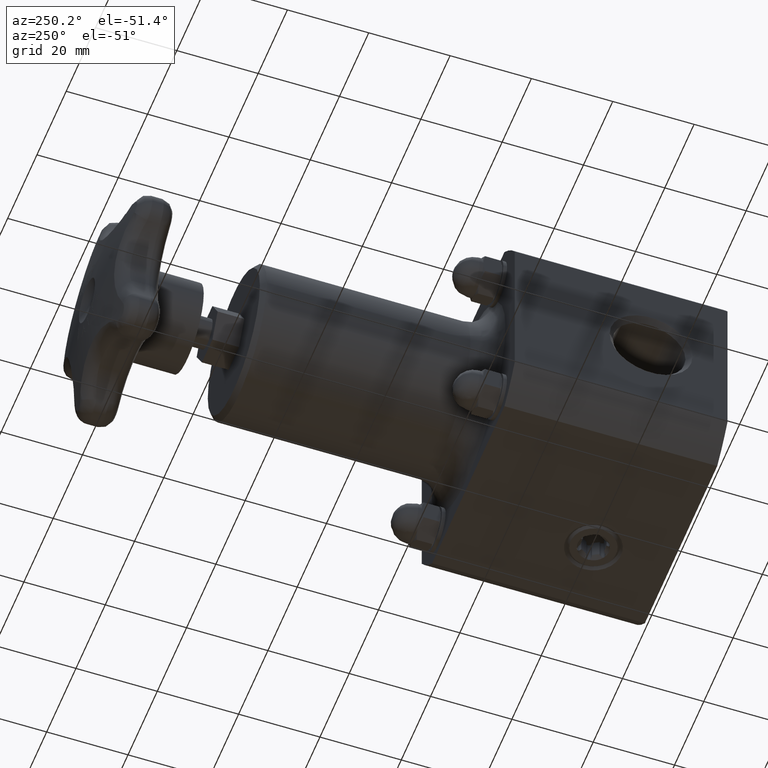
[diagram: clean part render]
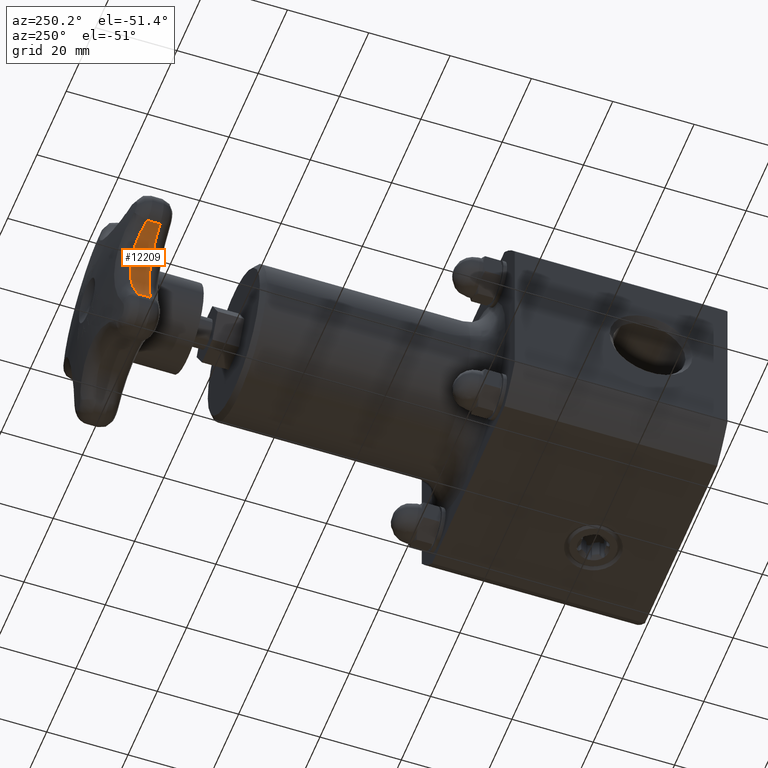
[diagram: same view with one face highlighted and labeled with its STEP entity id]
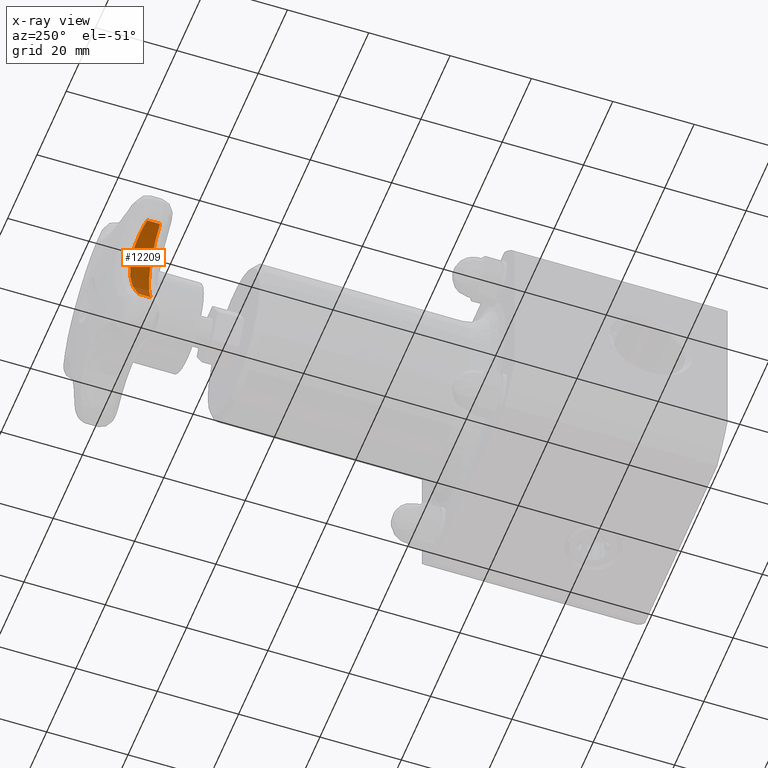
[diagram: x-ray of the same camera — body ghosted, the highlighted face saturated]
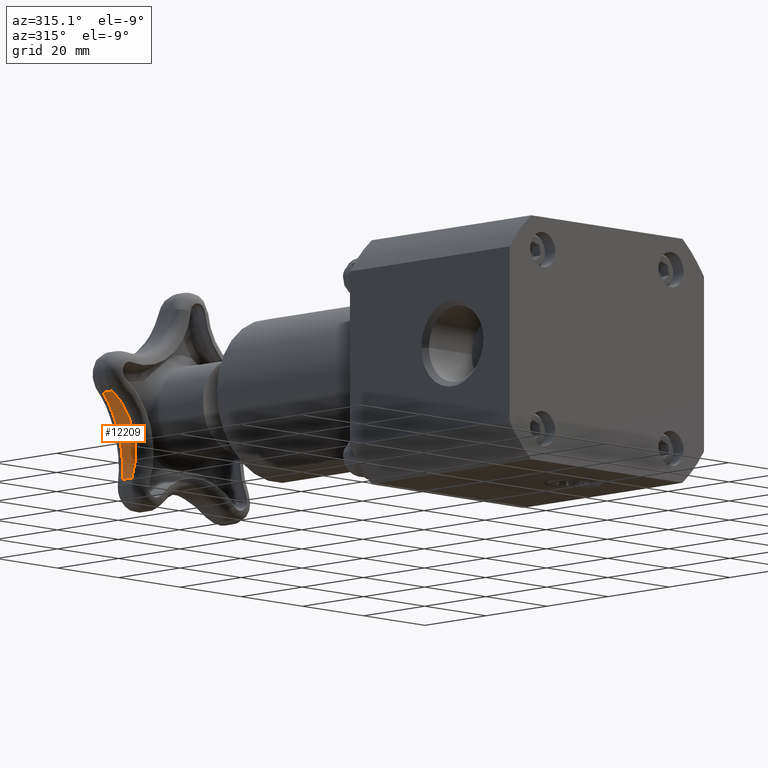
[diagram: same view with one face highlighted and labeled with its STEP entity id]
A machine part, auxiliary view. The second image highlights one B-rep face of the part: STEP entity #12209.
The next image is the same camera in x-ray: the body ghosted, the highlighted face saturated — about 0% of this face is hidden behind the body in this view.
A second angle (auxiliary view) of the same face is appended — the face is thin or edge-on in the first view.
In plain terms, the highlighted cylindrical surface (partial cylindrical patch) has radius 15.868 mm, axis along (0, -1, 0).
Its self-contained STEP definition (entity closure, byte-faithful):
#8273=CARTESIAN_POINT('',(-0.981556853027090,5.397500000000000,0.109182334252033));
#8274=VERTEX_POINT('',#8273);
#8282=CARTESIAN_POINT('',(-0.729920409159897,5.397500000000000,-0.665275006391353));
#8283=VERTEX_POINT('',#8282);
#8284=CARTESIAN_POINT('',(-1.306367577945865,5.397500000000000,-0.424464556594687));
#8285=DIRECTION('',(-5.945184E-034,1.000000000000000,-1.931707E-034));
#8286=DIRECTION('',(0.951056516295154,6.251136E-034,0.309016994374947));
#8287=AXIS2_PLACEMENT_3D('',#8284,#8285,#8286);
#8288=CIRCLE('',#8287,0.624724748295304);
#8289=EDGE_CURVE('',#8274,#8283,#8288,.T.);
#12144=CARTESIAN_POINT('',(-0.729920409159901,5.521105015293272,-0.665275006391361));
#12145=VERTEX_POINT('',#12144);
#12146=CARTESIAN_POINT('',(-0.729920409159897,5.521105015293272,-0.665275006391353));
#12147=DIRECTION('',(0.0,-1.0,0.0));
#12148=VECTOR('',#12147,0.123605015293272);
#12149=LINE('',#12146,#12148);
#12150=EDGE_CURVE('',#12145,#8283,#12149,.T.);
#12178=CARTESIAN_POINT('',(-1.306367577945865,5.757500000000000,-0.424464556594687));
#12179=DIRECTION('',(2.063892E-049,-1.0,2.022910E-033));
#12180=DIRECTION('',(-0.519926136758775,-1.727993E-033,-0.854211222306928));
#12181=AXIS2_PLACEMENT_3D('',#12178,#12179,#12180);
#12182=CYLINDRICAL_SURFACE('',#12181,0.624724748295304);
#12183=ORIENTED_EDGE('',*,*,#8289,.F.);
#12184=CARTESIAN_POINT('',(-0.981556853027228,5.521105015293182,0.109182334252116));
#12185=VERTEX_POINT('',#12184);
#12186=CARTESIAN_POINT('',(-0.981556853027090,5.521105015293182,0.109182334252033));
#12187=DIRECTION('',(0.0,-1.0,0.0));
#12188=VECTOR('',#12187,0.123605015293182);
#12189=LINE('',#12186,#12188);
#12190=EDGE_CURVE('',#12185,#8274,#12189,.T.);
#12191=ORIENTED_EDGE('',*,*,#12190,.F.);
#12192=CARTESIAN_POINT('',(-0.729920409159900,5.521105015293271,-0.665275006391359));
#12193=CARTESIAN_POINT('',(-0.714017770971576,5.532803163880361,-0.627207593753630));
#12194=CARTESIAN_POINT('',(-0.689319608094468,5.553791079047668,-0.546288280776906));
#12195=CARTESIAN_POINT('',(-0.677293972334510,5.575494374835296,-0.419852811217883));
#12196=CARTESIAN_POINT('',(-0.691397799660802,5.586658830811022,-0.292005294373069));
#12197=CARTESIAN_POINT('',(-0.727627126002246,5.586680585904620,-0.180336942158014));
#12198=CARTESIAN_POINT('',(-0.778419174460501,5.578495382479554,-0.085921675862045));
#12199=CARTESIAN_POINT('',(-0.829312401196484,5.566665255920975,-0.018511309782534));
#12200=CARTESIAN_POINT('',(-0.895770008540768,5.548523257198770,0.049706968987957));
#12201=CARTESIAN_POINT('',(-0.946315884736216,5.532803163880280,0.087732486696052));
#12202=CARTESIAN_POINT('',(-0.981556853027366,5.521105015293182,0.109182334252200));
#12203=B_SPLINE_CURVE_WITH_KNOTS('',3,(#12192,#12193,#12194,#12195,#12196,#12197,#12198,#12199,#12200,#12201,#12202),.UNSPECIFIED.,.F.,.U.,(4,1,1,1,1,1,1,1,4),(-2.696457794171016,-2.311249537860871,-1.926041281550726,-1.540833025240581,-1.155624768930436,-0.866718576697827,-0.577812384465218,-0.385208256310145,0.0),.UNSPECIFIED.);
#12204=EDGE_CURVE('',#12145,#12185,#12203,.T.);
#12205=ORIENTED_EDGE('',*,*,#12204,.F.);
#12206=ORIENTED_EDGE('',*,*,#12150,.T.);
#12207=EDGE_LOOP('',(#12183,#12191,#12205,#12206));
#12208=FACE_OUTER_BOUND('',#12207,.T.);
#12209=ADVANCED_FACE('',(#12208),#12182,.F.);